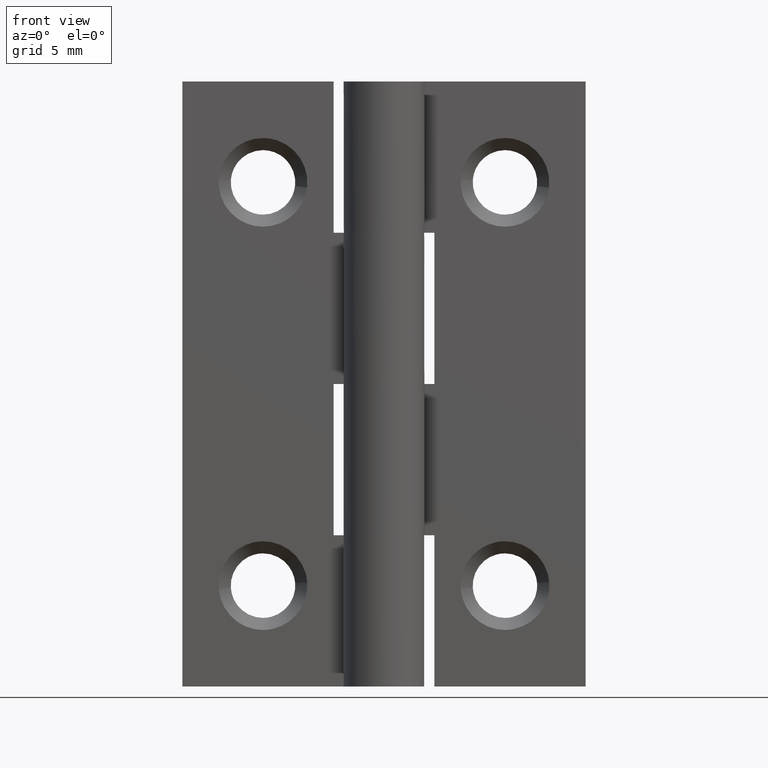
[diagram: clean part render]
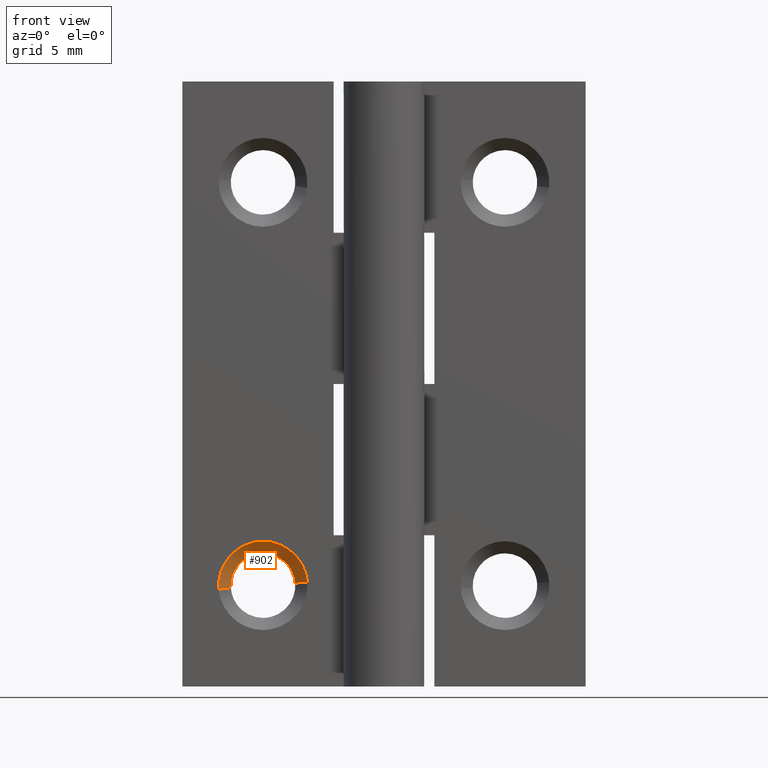
[diagram: same view with one face highlighted and labeled with its STEP entity id]
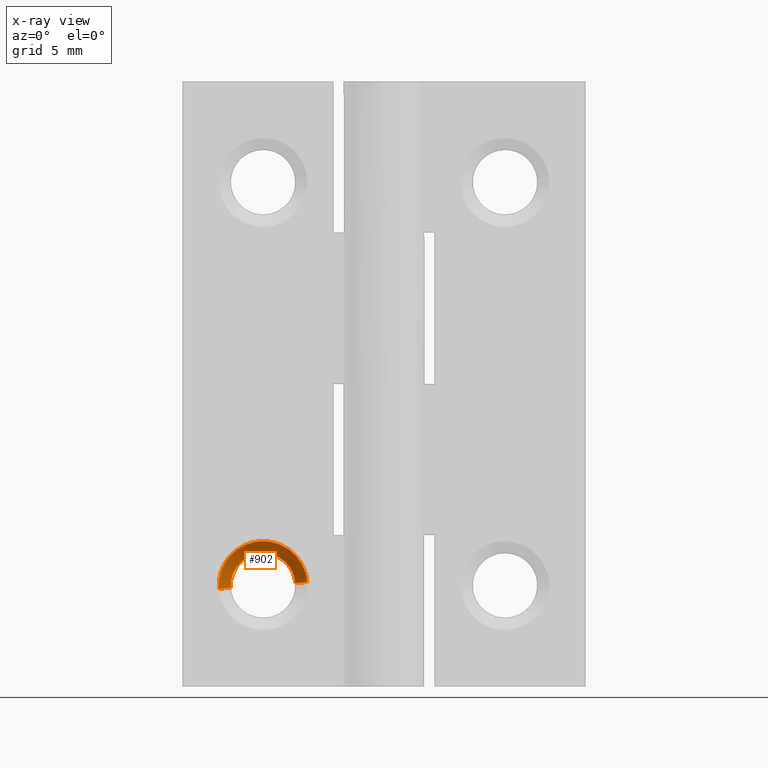
[diagram: x-ray of the same camera — body ghosted, the highlighted face saturated]
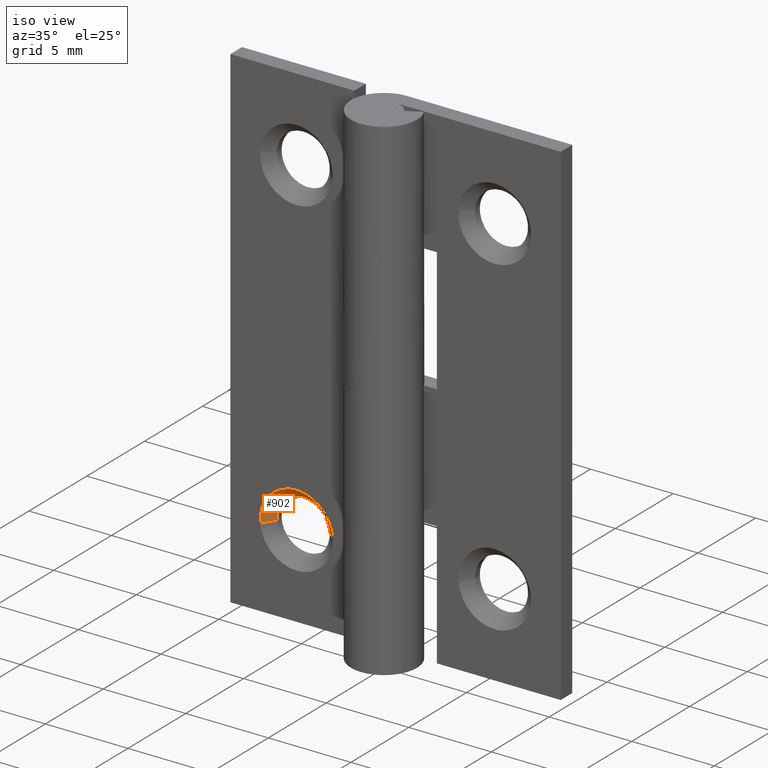
[diagram: same view with one face highlighted and labeled with its STEP entity id]
A machine part, front view. The second image highlights one B-rep face of the part: STEP entity #902.
The next image is the same camera in x-ray: the body ghosted, the highlighted face saturated — about 0% of this face is hidden behind the body in this view.
A second angle (iso view) of the same face is appended — the face is thin or edge-on in the first view.
In plain terms, the highlighted face is a freeform B-spline surface patch.
Its self-contained STEP definition (entity closure, byte-faithful):
#707=CARTESIAN_POINT('',(-7.597015685770316,1.599999999999839,4.902322472371856));
#708=VERTEX_POINT('',#707);
#752=CARTESIAN_POINT('',(-4.404932266016014,1.599999999972558,5.125534553374802));
#753=VERTEX_POINT('',#752);
#769=CARTESIAN_POINT('',(-6.0,1.600000000000000,6.600000000000000));
#770=VERTEX_POINT('',#769);
#771=CARTESIAN_POINT('',(-6.0,1.600000000000000,6.600000000000000));
#772=CARTESIAN_POINT('',(-4.520975213733976,1.600000000000000,6.599999999999999));
#773=CARTESIAN_POINT('',(-4.404932266016014,1.599999999972558,5.125534553374802));
#781=(BOUNDED_CURVE()B_SPLINE_CURVE(2,(#771,#772,#773),.UNSPECIFIED.,.F.,.U.)B_SPLINE_CURVE_WITH_KNOTS((3,3),(0.0,0.236331300588038),.UNSPECIFIED.)CURVE()GEOMETRIC_REPRESENTATION_ITEM()RATIONAL_B_SPLINE_CURVE((1.0,0.723120658657600,0.969723356078470))REPRESENTATION_ITEM(''));
#782=EDGE_CURVE('',#770,#753,#781,.T.);
#784=CARTESIAN_POINT('',(-7.597015685770316,1.599999999999839,4.902322472371857));
#785=CARTESIAN_POINT('',(-7.600000000000000,1.600000000000000,4.951115646726214));
#786=CARTESIAN_POINT('',(-7.600000000000000,1.600000000000000,5.0));
#787=CARTESIAN_POINT('',(-7.600000000000000,1.600000000000000,6.599999999999999));
#788=CARTESIAN_POINT('',(-6.0,1.600000000000000,6.600000000000000));
#796=(BOUNDED_CURVE()B_SPLINE_CURVE(2,(#784,#785,#786,#787,#788),.UNSPECIFIED.,.F.,.U.)B_SPLINE_CURVE_WITH_KNOTS((3,2,3),(0.739332976895620,0.750000000000000,1.0),.UNSPECIFIED.)CURVE()GEOMETRIC_REPRESENTATION_ITEM()RATIONAL_B_SPLINE_CURVE((0.976072073078769,0.987502805071203,1.0,0.707106781186548,1.0))REPRESENTATION_ITEM(''));
#797=EDGE_CURVE('',#708,#770,#796,.T.);
#836=CARTESIAN_POINT('',(-4.419886026032990,1.615000000000000,5.124357666728636));
#837=CARTESIAN_POINT('',(-4.544243692761626,1.615000000000001,6.704471640695646));
#838=CARTESIAN_POINT('',(-6.124357666728636,1.615000000000000,6.580113973967010));
#839=CARTESIAN_POINT('',(-7.704471640695648,1.615000000000001,6.455756307238375));
#840=CARTESIAN_POINT('',(-7.580113973967010,1.615000000000000,4.875642333271364));
#841=CARTESIAN_POINT('',(-3.791454261780972,0.984625000000000,5.173816319198076));
#842=CARTESIAN_POINT('',(-3.965270580979048,0.984625000000000,7.382362057417104));
#843=CARTESIAN_POINT('',(-6.173816319198076,0.984625000000000,7.208545738219028));
#844=CARTESIAN_POINT('',(-8.382362057417105,0.984625000000000,7.034729419020951));
#845=CARTESIAN_POINT('',(-8.208545738219028,0.984625000000000,4.826183680801925));
#853=(BOUNDED_SURFACE()B_SPLINE_SURFACE(2,1,((#836,#841),(#837,#842),(#838,#843),(#839,#844),(#840,#845)),.UNSPECIFIED.,.F.,.F.,.U.)B_SPLINE_SURFACE_WITH_KNOTS((3,2,3),(2,2),(0.0,3.670553482969184,7.341106965938367),(0.0,1.0),.UNSPECIFIED.)GEOMETRIC_REPRESENTATION_ITEM()RATIONAL_B_SPLINE_SURFACE(((1.0,1.0),(0.707106781186548,0.707106781186548),(1.0,1.0),(0.707106781186548,0.707106781186548),(1.0,1.0)))REPRESENTATION_ITEM('')SURFACE());
#854=ORIENTED_EDGE('',*,*,#782,.T.);
#855=CARTESIAN_POINT('',(-3.806781865777370,0.999999999975531,5.172610010789256));
#856=VERTEX_POINT('',#855);
#857=CARTESIAN_POINT('',(-4.404932266016014,1.599999999972558,5.125534553374802));
#858=CARTESIAN_POINT('',(-3.806781865777370,0.999999999975531,5.172610010789256));
#859=QUASI_UNIFORM_CURVE('',1,(#857,#858),.UNSPECIFIED.,.F.,.U.);
#860=EDGE_CURVE('',#753,#856,#859,.T.);
#861=ORIENTED_EDGE('',*,*,#860,.T.);
#862=CARTESIAN_POINT('',(-6.0,1.0,7.200000000000000));
#863=VERTEX_POINT('',#862);
#864=CARTESIAN_POINT('',(-6.0,1.0,7.200000000000000));
#865=CARTESIAN_POINT('',(-3.966340918698092,1.0,7.200000000000001));
#866=CARTESIAN_POINT('',(-3.806781865777370,0.999999999975531,5.172610010789257));
#874=(BOUNDED_CURVE()B_SPLINE_CURVE(2,(#864,#865,#866),.UNSPECIFIED.,.F.,.U.)B_SPLINE_CURVE_WITH_KNOTS((3,3),(0.0,0.236331300603679),.UNSPECIFIED.)CURVE()GEOMETRIC_REPRESENTATION_ITEM()RATIONAL_B_SPLINE_CURVE((1.0,0.723120658639275,0.969723356111111))REPRESENTATION_ITEM(''));
#875=EDGE_CURVE('',#863,#856,#874,.T.);
#876=ORIENTED_EDGE('',*,*,#875,.F.);
#877=CARTESIAN_POINT('',(-8.193218134222631,0.999999999975530,4.827389989210745));
#878=VERTEX_POINT('',#877);
#879=CARTESIAN_POINT('',(-8.193218134222631,0.999999999975530,4.827389989210745));
#880=CARTESIAN_POINT('',(-8.200000000000001,1.0,4.913561764396186));
#881=CARTESIAN_POINT('',(-8.200000000000001,1.0,5.0));
#882=CARTESIAN_POINT('',(-8.200000000000001,1.0,7.200000000000000));
#883=CARTESIAN_POINT('',(-6.0,1.0,7.200000000000000));
#891=(BOUNDED_CURVE()B_SPLINE_CURVE(2,(#879,#880,#881,#882,#883),.UNSPECIFIED.,.F.,.U.)B_SPLINE_CURVE_WITH_KNOTS((3,2,3),(0.736331300603679,0.750000000000000,1.0),.UNSPECIFIED.)CURVE()GEOMETRIC_REPRESENTATION_ITEM()RATIONAL_B_SPLINE_CURVE((0.969723356111111,0.983986122547272,1.0,0.707106781186548,1.0))REPRESENTATION_ITEM(''));
#892=EDGE_CURVE('',#878,#863,#891,.T.);
#893=ORIENTED_EDGE('',*,*,#892,.F.);
#894=CARTESIAN_POINT('',(-7.597015685770316,1.599999999999839,4.902322472371856));
#895=CARTESIAN_POINT('',(-8.193218134222631,0.999999999975530,4.827389989210745));
#896=QUASI_UNIFORM_CURVE('',1,(#894,#895),.UNSPECIFIED.,.F.,.U.);
#897=EDGE_CURVE('',#708,#878,#896,.T.);
#898=ORIENTED_EDGE('',*,*,#897,.F.);
#899=ORIENTED_EDGE('',*,*,#797,.T.);
#900=EDGE_LOOP('',(#854,#861,#876,#893,#898,#899));
#901=FACE_OUTER_BOUND('',#900,.T.);
#902=ADVANCED_FACE('',(#901),#853,.F.);